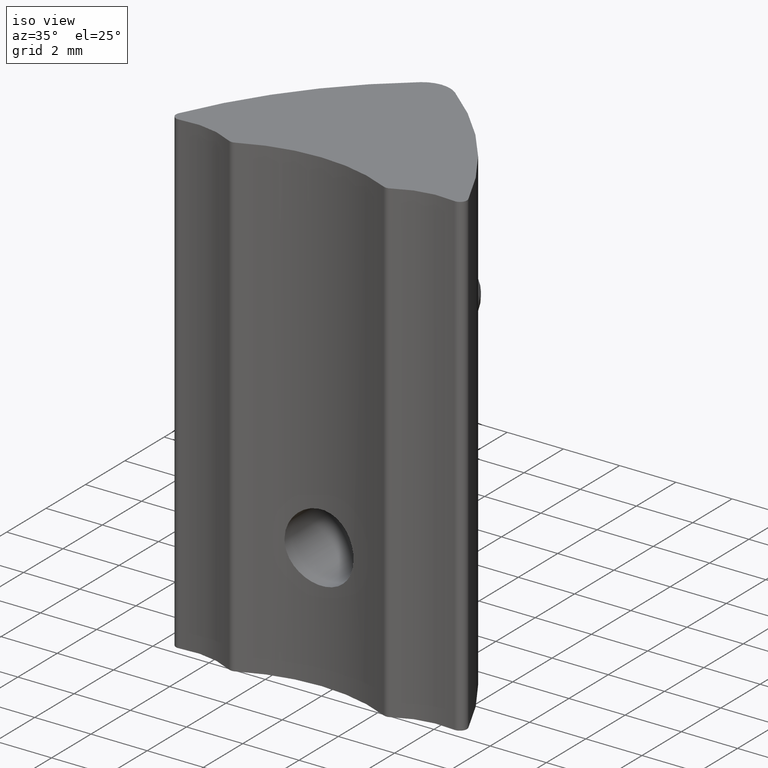
[diagram: clean part render]
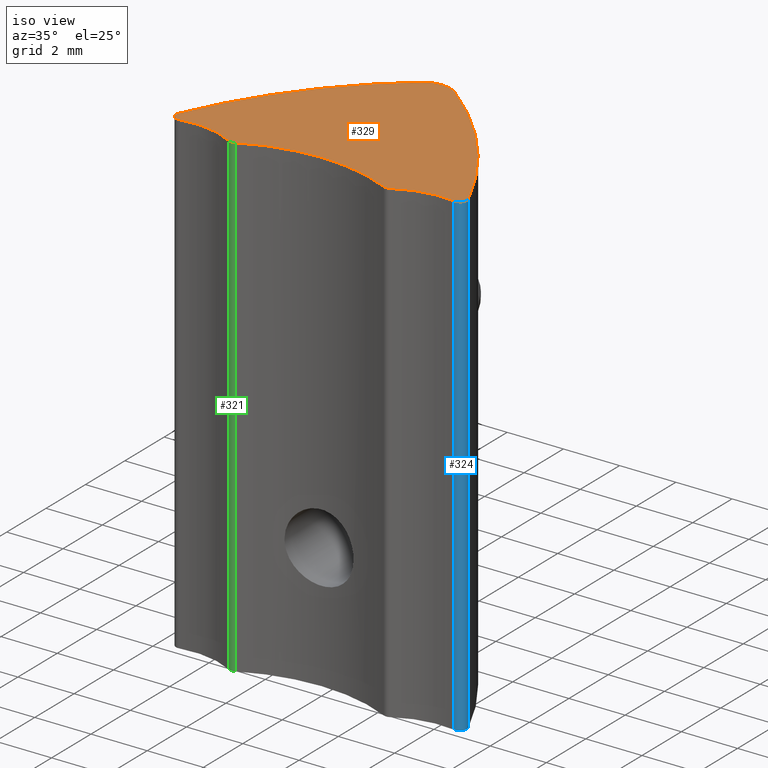
[diagram: same view with three faces highlighted in distinct colors, each labeled with its STEP entity id]
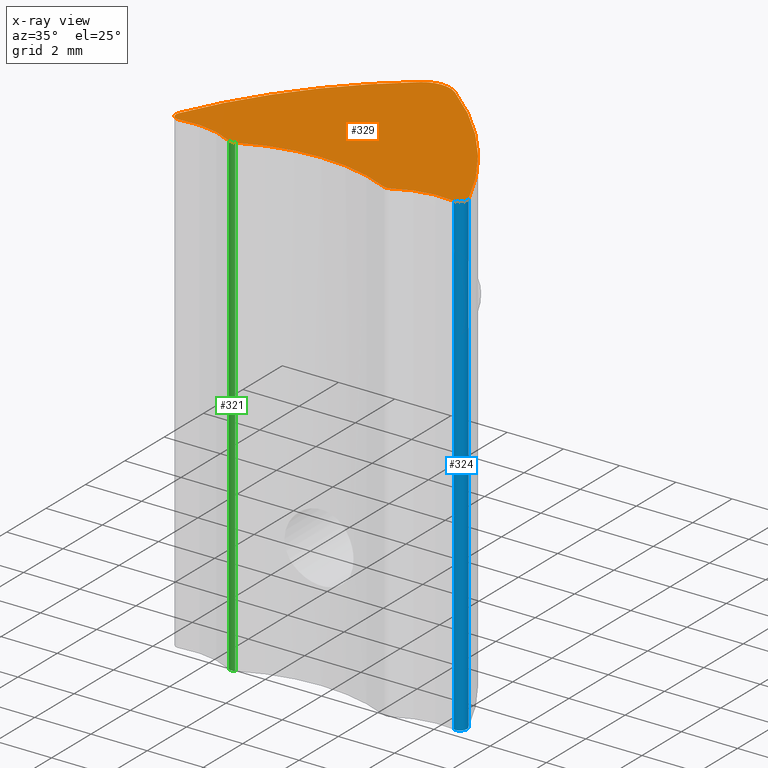
[diagram: x-ray of the same camera — body ghosted, the three highlighted faces saturated]
A machine part, iso view with three faces highlighted in distinct colors.
The next image is the same camera in x-ray (body ghosted, the three faces saturated) — at least one of them is partly hidden behind the body in this view.
Their STEP definitions:

[orange] entity #329 — the highlighted planar face has unit normal (0, 0, 1).
#15=PLANE('',#389);
#89=FACE_OUTER_BOUND('',#107,.T.);
#107=EDGE_LOOP('',(#301,#302,#303,#304,#305,#306,#307,#308,#309,#310));
#110=CIRCLE('',#357,15.);
#111=CIRCLE('',#361,15.);
#113=CIRCLE('',#364,1.);
#116=CIRCLE('',#369,0.25);
#118=CIRCLE('',#372,3.);
#120=CIRCLE('',#375,0.25);
#122=CIRCLE('',#378,0.25);
#124=CIRCLE('',#381,3.);
#126=CIRCLE('',#384,0.25);
#128=CIRCLE('',#387,6.);
#139=VERTEX_POINT('',#570);
#140=VERTEX_POINT('',#572);
#148=VERTEX_POINT('',#663);
#149=VERTEX_POINT('',#665);
#154=VERTEX_POINT('',#680);
#155=VERTEX_POINT('',#682);
#157=VERTEX_POINT('',#688);
#159=VERTEX_POINT('',#697);
#161=VERTEX_POINT('',#703);
#163=VERTEX_POINT('',#709);
#174=EDGE_CURVE('',#140,#139,#110,.T.);
#187=EDGE_CURVE('',#149,#148,#111,.T.);
#191=EDGE_CURVE('',#148,#140,#113,.T.);
#195=EDGE_CURVE('',#155,#154,#116,.T.);
#198=EDGE_CURVE('',#157,#155,#118,.T.);
#201=EDGE_CURVE('',#139,#157,#120,.T.);
#203=EDGE_CURVE('',#159,#149,#122,.T.);
#206=EDGE_CURVE('',#161,#159,#124,.T.);
#209=EDGE_CURVE('',#163,#161,#126,.T.);
#212=EDGE_CURVE('',#154,#163,#128,.T.);
#301=ORIENTED_EDGE('',*,*,#212,.T.);
#302=ORIENTED_EDGE('',*,*,#209,.T.);
#303=ORIENTED_EDGE('',*,*,#206,.T.);
#304=ORIENTED_EDGE('',*,*,#203,.T.);
#305=ORIENTED_EDGE('',*,*,#187,.T.);
#306=ORIENTED_EDGE('',*,*,#191,.T.);
#307=ORIENTED_EDGE('',*,*,#174,.T.);
#308=ORIENTED_EDGE('',*,*,#201,.T.);
#309=ORIENTED_EDGE('',*,*,#198,.T.);
#310=ORIENTED_EDGE('',*,*,#195,.T.);
#329=ADVANCED_FACE('',(#89),#15,.T.);
#357=AXIS2_PLACEMENT_3D('',#573,#403,#404);
#361=AXIS2_PLACEMENT_3D('',#666,#415,#416);
#364=AXIS2_PLACEMENT_3D('',#673,#423,#424);
#369=AXIS2_PLACEMENT_3D('',#683,#434,#435);
#372=AXIS2_PLACEMENT_3D('',#689,#441,#442);
#375=AXIS2_PLACEMENT_3D('',#693,#448,#449);
#378=AXIS2_PLACEMENT_3D('',#698,#454,#455);
#381=AXIS2_PLACEMENT_3D('',#704,#461,#462);
#384=AXIS2_PLACEMENT_3D('',#710,#468,#469);
#387=AXIS2_PLACEMENT_3D('',#714,#475,#476);
#389=AXIS2_PLACEMENT_3D('',#716,#479,#480);
#403=DIRECTION('center_axis',(0.,0.,1.));
#404=DIRECTION('ref_axis',(0.61194185594615,-0.790902753150589,0.));
#415=DIRECTION('center_axis',(0.,0.,1.));
#416=DIRECTION('ref_axis',(-0.914724473440414,-0.404078133148971,0.));
#423=DIRECTION('center_axis',(0.,0.,1.));
#424=DIRECTION('ref_axis',(-0.61194185594615,-0.790902753150589,0.));
#434=DIRECTION('center_axis',(0.,0.,1.));
#435=DIRECTION('ref_axis',(0.499578080536772,0.866268862101827,0.));
#441=DIRECTION('center_axis',(0.,0.,-1.));
#442=DIRECTION('ref_axis',(0.499578080536772,0.866268862101827,0.));
#448=DIRECTION('center_axis',(0.,0.,1.));
#449=DIRECTION('ref_axis',(0.914724473440414,-0.404078133148971,0.));
#454=DIRECTION('center_axis',(0.,0.,1.));
#455=DIRECTION('ref_axis',(0.169652688694,0.985503914360008,0.));
#461=DIRECTION('center_axis',(0.,0.,-1.));
#462=DIRECTION('ref_axis',(0.169652688693997,0.985503914360008,0.));
#468=DIRECTION('center_axis',(0.,0.,1.));
#469=DIRECTION('ref_axis',(0.440000000000006,0.897997772825743,0.));
#475=DIRECTION('center_axis',(0.,0.,-1.));
#476=DIRECTION('ref_axis',(0.44,0.897997772825746,0.));
#479=DIRECTION('center_axis',(0.,0.,1.));
#480=DIRECTION('ref_axis',(1.,0.,0.));
#570=CARTESIAN_POINT('',(-5.1536811183601,0.101019533287241,17.));
#572=CARTESIAN_POINT('',(-0.611941855946148,5.9033888333115,17.));
#573=CARTESIAN_POINT('Origin',(8.56718598324611,-5.96015246394733,17.));
#663=CARTESIAN_POINT('',(0.611941855946153,5.9033888333115,17.));
#665=CARTESIAN_POINT('',(5.1536811183601,0.101019533287243,17.));
#666=CARTESIAN_POINT('Origin',(-8.5671859832461,-5.96015246394733,17.));
#673=CARTESIAN_POINT('Origin',(3.9154830615245E-25,5.11248608016091,17.));
#680=CARTESIAN_POINT('',(-2.64,-0.612013363045524,17.));
#682=CARTESIAN_POINT('',(-2.87489452013419,-0.604081135364544,17.));
#683=CARTESIAN_POINT('Origin',(-2.75,-0.387513919839087,17.));
#688=CARTESIAN_POINT('',(-4.8825868278265,-0.246375978590002,17.));
#689=CARTESIAN_POINT('Origin',(-4.37362876174451,-3.20288772167003,17.));
#693=CARTESIAN_POINT('Origin',(-4.925,0.,17.));
#697=CARTESIAN_POINT('',(4.8825868278265,-0.246375978590002,17.));
#698=CARTESIAN_POINT('Origin',(4.925,0.,17.));
#703=CARTESIAN_POINT('',(2.87489452013419,-0.604081135364544,17.));
#704=CARTESIAN_POINT('Origin',(4.37362876174451,-3.20288772167003,17.));
#709=CARTESIAN_POINT('',(2.64,-0.612013363045523,17.));
#710=CARTESIAN_POINT('Origin',(2.75,-0.387513919839088,17.));
#714=CARTESIAN_POINT('Origin',(0.,-6.,17.));
#716=CARTESIAN_POINT('Origin',(2.0921956826649E-15,1.92014880889303,17.));

[blue] entity #324 — the highlighted cylindrical surface (edge-blend (fillet) strip) has radius 0.25 mm, axis along (0, 0, 1).
#23=LINE('',#668,#38);
#28=LINE('',#699,#43);
#38=VECTOR('',#417,10.);
#43=VECTOR('',#456,10.);
#55=CYLINDRICAL_SURFACE('',#376,0.25);
#84=FACE_OUTER_BOUND('',#101,.T.);
#101=EDGE_LOOP('',(#273,#274,#275,#276));
#121=CIRCLE('',#377,0.25);
#122=CIRCLE('',#378,0.25);
#149=VERTEX_POINT('',#665);
#150=VERTEX_POINT('',#667);
#158=VERTEX_POINT('',#695);
#159=VERTEX_POINT('',#697);
#188=EDGE_CURVE('',#150,#149,#23,.T.);
#202=EDGE_CURVE('',#150,#158,#121,.T.);
#203=EDGE_CURVE('',#159,#149,#122,.T.);
#204=EDGE_CURVE('',#158,#159,#28,.T.);
#273=ORIENTED_EDGE('',*,*,#202,.F.);
#274=ORIENTED_EDGE('',*,*,#188,.T.);
#275=ORIENTED_EDGE('',*,*,#203,.F.);
#276=ORIENTED_EDGE('',*,*,#204,.F.);
#324=ADVANCED_FACE('',(#84),#55,.T.);
#376=AXIS2_PLACEMENT_3D('',#694,#450,#451);
#377=AXIS2_PLACEMENT_3D('',#696,#452,#453);
#378=AXIS2_PLACEMENT_3D('',#698,#454,#455);
#417=DIRECTION('',(0.,0.,1.));
#450=DIRECTION('center_axis',(0.,0.,1.));
#451=DIRECTION('ref_axis',(0.169652688694,0.985503914360008,0.));
#452=DIRECTION('center_axis',(0.,0.,-1.));
#453=DIRECTION('ref_axis',(0.169652688694,0.985503914360008,0.));
#454=DIRECTION('center_axis',(0.,0.,1.));
#455=DIRECTION('ref_axis',(0.169652688694,0.985503914360008,0.));
#456=DIRECTION('',(0.,0.,1.));
#665=CARTESIAN_POINT('',(5.1536811183601,0.101019533287243,17.));
#667=CARTESIAN_POINT('',(5.1536811183601,0.101019533287243,0.));
#668=CARTESIAN_POINT('',(5.1536811183601,0.101019533287243,0.));
#694=CARTESIAN_POINT('Origin',(4.925,0.,0.));
#695=CARTESIAN_POINT('',(4.8825868278265,-0.246375978590002,0.));
#696=CARTESIAN_POINT('Origin',(4.925,0.,0.));
#697=CARTESIAN_POINT('',(4.8825868278265,-0.246375978590002,17.));
#698=CARTESIAN_POINT('Origin',(4.925,0.,17.));
#699=CARTESIAN_POINT('',(4.8825868278265,-0.246375978590002,0.));

[green] entity #321 — the highlighted cylindrical surface (edge-blend (fillet) strip) has radius 0.25 mm, axis along (0, 0, 1).
#25=LINE('',#681,#40);
#26=LINE('',#684,#41);
#40=VECTOR('',#433,10.);
#41=VECTOR('',#436,10.);
#52=CYLINDRICAL_SURFACE('',#367,0.25);
#81=FACE_OUTER_BOUND('',#98,.T.);
#98=EDGE_LOOP('',(#261,#262,#263,#264));
#115=CIRCLE('',#368,0.25);
#116=CIRCLE('',#369,0.25);
#152=VERTEX_POINT('',#677);
#153=VERTEX_POINT('',#678);
#154=VERTEX_POINT('',#680);
#155=VERTEX_POINT('',#682);
#193=EDGE_CURVE('',#152,#153,#115,.T.);
#194=EDGE_CURVE('',#152,#154,#25,.T.);
#195=EDGE_CURVE('',#155,#154,#116,.T.);
#196=EDGE_CURVE('',#153,#155,#26,.T.);
#261=ORIENTED_EDGE('',*,*,#193,.F.);
#262=ORIENTED_EDGE('',*,*,#194,.T.);
#263=ORIENTED_EDGE('',*,*,#195,.F.);
#264=ORIENTED_EDGE('',*,*,#196,.F.);
#321=ADVANCED_FACE('',(#81),#52,.T.);
#367=AXIS2_PLACEMENT_3D('',#676,#429,#430);
#368=AXIS2_PLACEMENT_3D('',#679,#431,#432);
#369=AXIS2_PLACEMENT_3D('',#683,#434,#435);
#429=DIRECTION('center_axis',(0.,0.,1.));
#430=DIRECTION('ref_axis',(0.499578080536772,0.866268862101827,0.));
#431=DIRECTION('center_axis',(0.,0.,-1.));
#432=DIRECTION('ref_axis',(0.499578080536772,0.866268862101827,0.));
#433=DIRECTION('',(0.,0.,1.));
#434=DIRECTION('center_axis',(0.,0.,1.));
#435=DIRECTION('ref_axis',(0.499578080536772,0.866268862101827,0.));
#436=DIRECTION('',(0.,0.,1.));
#676=CARTESIAN_POINT('Origin',(-2.75,-0.387513919839087,0.));
#677=CARTESIAN_POINT('',(-2.64,-0.612013363045524,0.));
#678=CARTESIAN_POINT('',(-2.87489452013419,-0.604081135364544,0.));
#679=CARTESIAN_POINT('Origin',(-2.75,-0.387513919839087,0.));
#680=CARTESIAN_POINT('',(-2.64,-0.612013363045524,17.));
#681=CARTESIAN_POINT('',(-2.64,-0.612013363045524,0.));
#682=CARTESIAN_POINT('',(-2.87489452013419,-0.604081135364544,17.));
#683=CARTESIAN_POINT('Origin',(-2.75,-0.387513919839087,17.));
#684=CARTESIAN_POINT('',(-2.87489452013419,-0.604081135364544,0.));